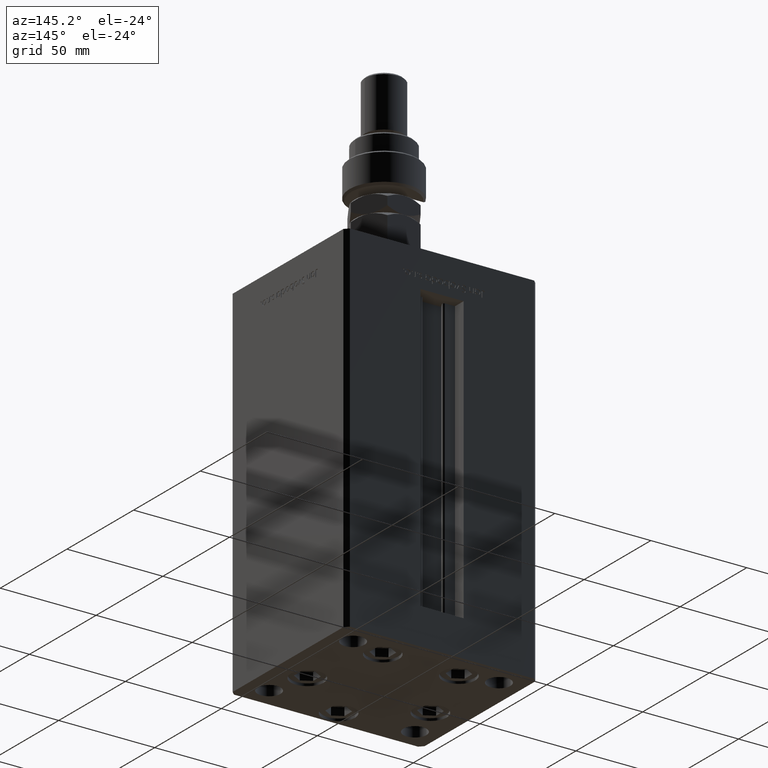
[diagram: clean part render]
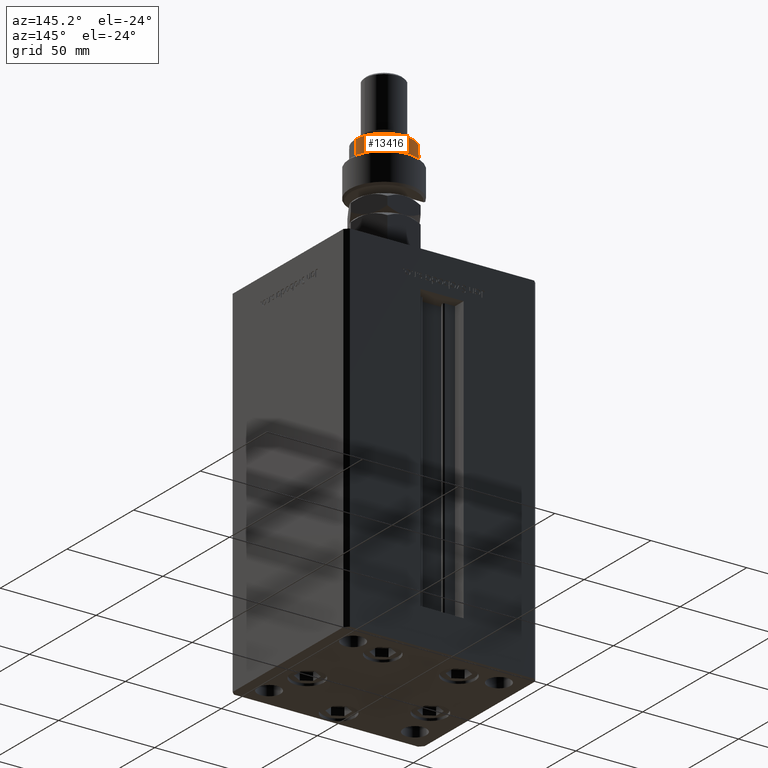
[diagram: same view with one face highlighted and labeled with its STEP entity id]
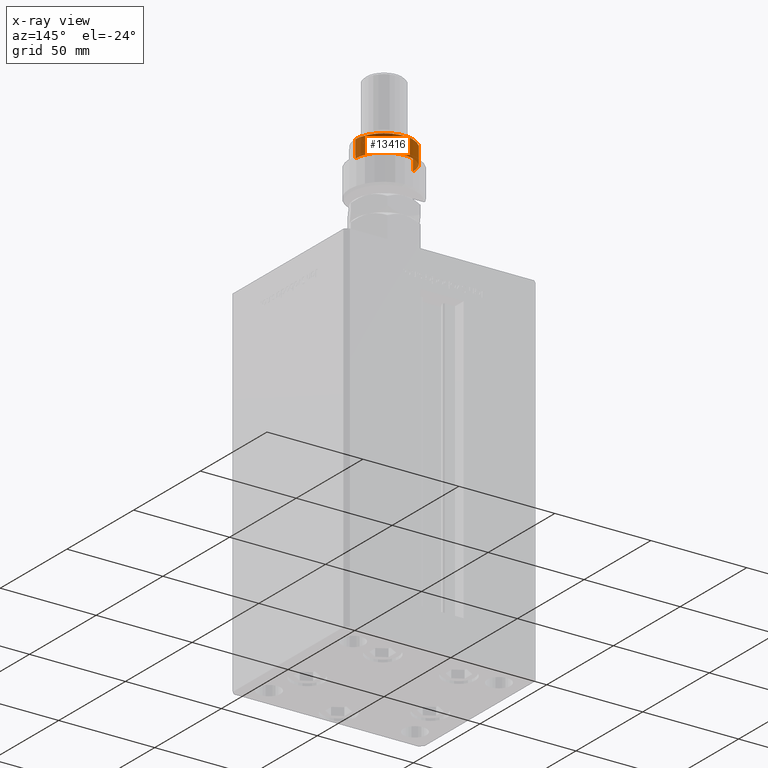
[diagram: x-ray of the same camera — body ghosted, the highlighted face saturated]
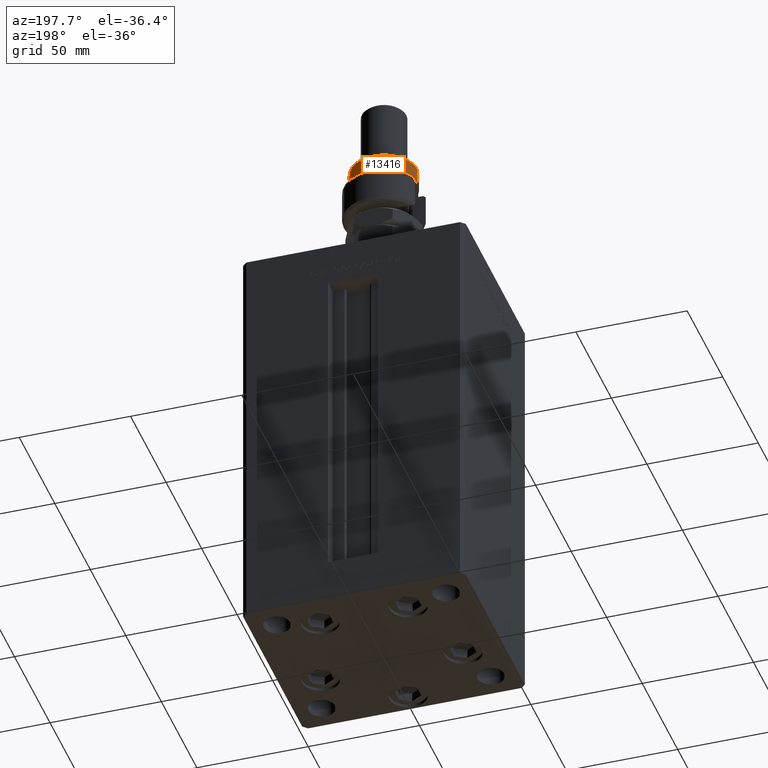
[diagram: same view with one face highlighted and labeled with its STEP entity id]
A machine part, auxiliary view. The second image highlights one B-rep face of the part: STEP entity #13416.
The next image is the same camera in x-ray: the body ghosted, the highlighted face saturated — about 0% of this face is hidden behind the body in this view.
A second angle (auxiliary view) of the same face is appended — the face is thin or edge-on in the first view.
In plain terms, the highlighted cylindrical surface (edge-blend (fillet) strip) has radius 15 mm, axis along (-0, -0, -1).
Its self-contained STEP definition (entity closure, byte-faithful):
#644 = VERTEX_POINT ( 'NONE', #23974 ) ;
#859 = AXIS2_PLACEMENT_3D ( 'NONE', #25402, #26228, #48179 ) ;
#3415 = CARTESIAN_POINT ( 'NONE',  ( 0.000000000000000000, 0.000000000000000000, 16.00000000000000000 ) ) ;
#5360 = EDGE_CURVE ( 'NONE', #35668, #13579, #36903, .T. ) ;
#6453 = CARTESIAN_POINT ( 'NONE',  ( -15.00000000000000000, 0.000000000000000000, 17.50000000000000000 ) ) ;
#6614 = CARTESIAN_POINT ( 'NONE',  ( -12.99038105676658006, 7.500000000000000000, 26.00000000000000355 ) ) ;
#7500 = DIRECTION ( 'NONE',  ( -0.000000000000000000, -0.000000000000000000, -1.000000000000000000 ) ) ;
#7604 = EDGE_CURVE ( 'NONE', #53092, #644, #29073, .T. ) ;
#9762 = ORIENTED_EDGE ( 'NONE', *, *, #29590, .T. ) ;
#13416 = ADVANCED_FACE ( 'NONE', ( #50698 ), #29569, .T. ) ;
#13579 = VERTEX_POINT ( 'NONE', #27577 ) ;
#15424 = CARTESIAN_POINT ( 'NONE',  ( -12.99038105676658006, 7.500000000000000000, 16.00000000000000000 ) ) ;
#15855 = DIRECTION ( 'NONE',  ( 1.000000000000000000, 0.000000000000000000, 0.000000000000000000 ) ) ;
#16486 = DIRECTION ( 'NONE',  ( 1.000000000000000000, 0.000000000000000000, 0.000000000000000000 ) ) ;
#16565 = DIRECTION ( 'NONE',  ( -1.000000000000000000, 0.000000000000000000, 0.000000000000000000 ) ) ;
#18027 = ORIENTED_EDGE ( 'NONE', *, *, #33081, .F. ) ;
#18822 = VERTEX_POINT ( 'NONE', #44834 ) ;
#18900 = ORIENTED_EDGE ( 'NONE', *, *, #44766, .T. ) ;
#19739 = CARTESIAN_POINT ( 'NONE',  ( 15.00000000000000000, 1.836970198721029589E-15, 26.00000000000000355 ) ) ;
#20564 = LINE ( 'NONE', #19739, #24159 ) ;
#22575 = AXIS2_PLACEMENT_3D ( 'NONE', #3415, #45659, #16486 ) ;
#23974 = CARTESIAN_POINT ( 'NONE',  ( 15.00000000000000000, 1.836970198721029589E-15, 24.99999999999997868 ) ) ;
#24159 = VECTOR ( 'NONE', #7500, 1000.000000000000000 ) ;
#24185 = DIRECTION ( 'NONE',  ( 0.000000000000000000, 0.000000000000000000, -1.000000000000000000 ) ) ;
#24779 = ORIENTED_EDGE ( 'NONE', *, *, #5360, .T. ) ;
#25402 = CARTESIAN_POINT ( 'NONE',  ( 0.000000000000000000, 0.000000000000000000, 26.00000000000000355 ) ) ;
#26228 = DIRECTION ( 'NONE',  ( -0.000000000000000000, -0.000000000000000000, -1.000000000000000000 ) ) ;
#26707 = LINE ( 'NONE', #35887, #42700 ) ;
#27184 = DIRECTION ( 'NONE',  ( 0.000000000000000000, 0.000000000000000000, 1.000000000000000000 ) ) ;
#27577 = CARTESIAN_POINT ( 'NONE',  ( -12.99038105676658006, 7.500000000000000000, 17.50000000000000000 ) ) ;
#28119 = CARTESIAN_POINT ( 'NONE',  ( -15.00000000000000000, 0.000000000000000000, 24.99999999999997868 ) ) ;
#29073 = CIRCLE ( 'NONE', #53075, 15.00000000000000000 ) ;
#29162 = ORIENTED_EDGE ( 'NONE', *, *, #7604, .T. ) ;
#29569 = CYLINDRICAL_SURFACE ( 'NONE', #859, 15.00000000000000000 ) ;
#29590 = EDGE_CURVE ( 'NONE', #18822, #35668, #39432, .T. ) ;
#31699 = DIRECTION ( 'NONE',  ( -0.000000000000000000, -0.000000000000000000, -1.000000000000000000 ) ) ;
#33081 = EDGE_CURVE ( 'NONE', #41501, #13579, #50569, .T. ) ;
#33731 = ORIENTED_EDGE ( 'NONE', *, *, #37001, .F. ) ;
#35668 = VERTEX_POINT ( 'NONE', #15424 ) ;
#35887 = CARTESIAN_POINT ( 'NONE',  ( -15.00000000000000000, 0.000000000000000000, 26.00000000000000355 ) ) ;
#36903 = LINE ( 'NONE', #6614, #44234 ) ;
#37001 = EDGE_CURVE ( 'NONE', #53092, #41501, #26707, .T. ) ;
#37243 = CARTESIAN_POINT ( 'NONE',  ( 0.000000000000000000, 0.000000000000000000, 24.99999999999997868 ) ) ;
#38141 = AXIS2_PLACEMENT_3D ( 'NONE', #41835, #41562, #16565 ) ;
#39432 = CIRCLE ( 'NONE', #22575, 15.00000000000000000 ) ;
#41501 = VERTEX_POINT ( 'NONE', #6453 ) ;
#41562 = DIRECTION ( 'NONE',  ( 0.000000000000000000, 0.000000000000000000, -1.000000000000000000 ) ) ;
#41835 = CARTESIAN_POINT ( 'NONE',  ( 0.000000000000000000, 0.000000000000000000, 17.50000000000000000 ) ) ;
#42700 = VECTOR ( 'NONE', #31699, 1000.000000000000000 ) ;
#44234 = VECTOR ( 'NONE', #27184, 1000.000000000000000 ) ;
#44766 = EDGE_CURVE ( 'NONE', #644, #18822, #20564, .T. ) ;
#44834 = CARTESIAN_POINT ( 'NONE',  ( 15.00000000000000000, 1.836970198721029589E-15, 16.00000000000000000 ) ) ;
#45659 = DIRECTION ( 'NONE',  ( 0.000000000000000000, 0.000000000000000000, 1.000000000000000000 ) ) ;
#47141 = EDGE_LOOP ( 'NONE', ( #29162, #18900, #9762, #24779, #18027, #33731 ) ) ;
#48179 = DIRECTION ( 'NONE',  ( -1.000000000000000000, 0.000000000000000000, 0.000000000000000000 ) ) ;
#50569 = CIRCLE ( 'NONE', #38141, 15.00000000000000000 ) ;
#50698 = FACE_OUTER_BOUND ( 'NONE', #47141, .T. ) ;
#53075 = AXIS2_PLACEMENT_3D ( 'NONE', #37243, #24185, #15855 ) ;
#53092 = VERTEX_POINT ( 'NONE', #28119 ) ;